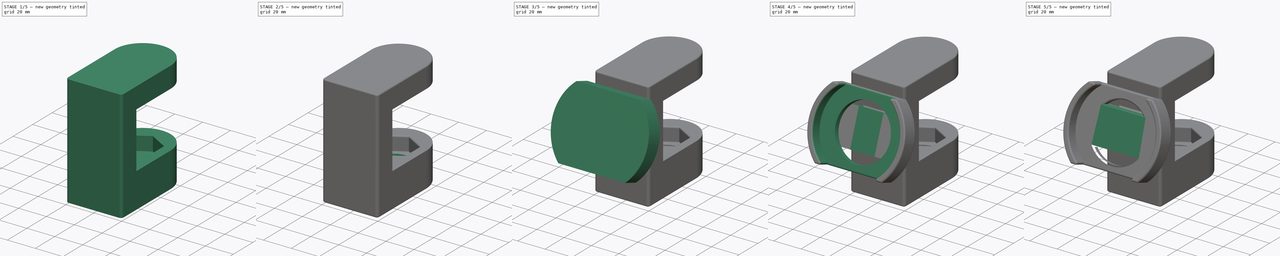
[diagram: build sequence overview — one tinted view per stage of 5, left to right]
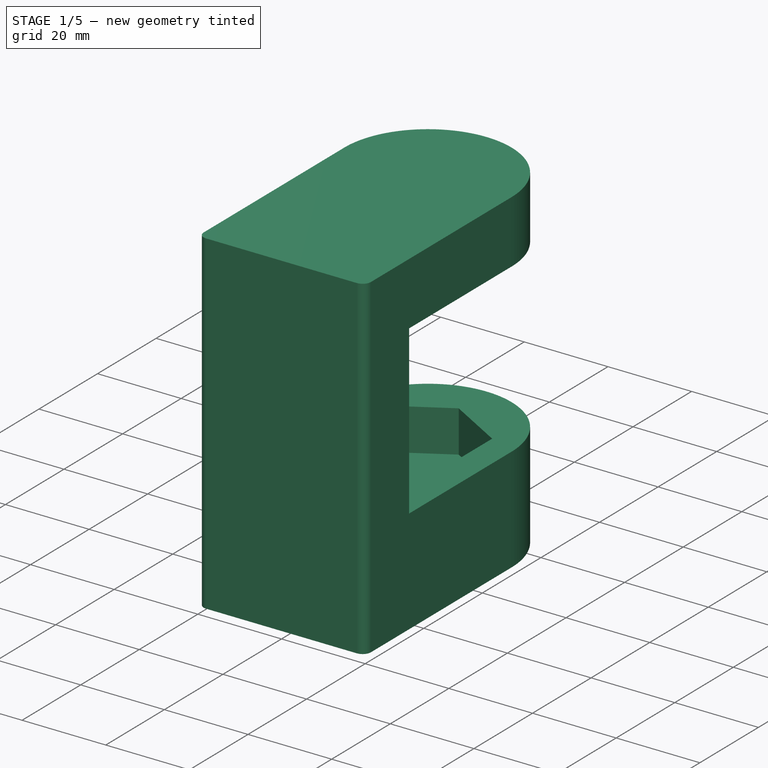
[diagram: stage 1 of 5 — iso view after this stage's code; geometry added in this stage tinted green]
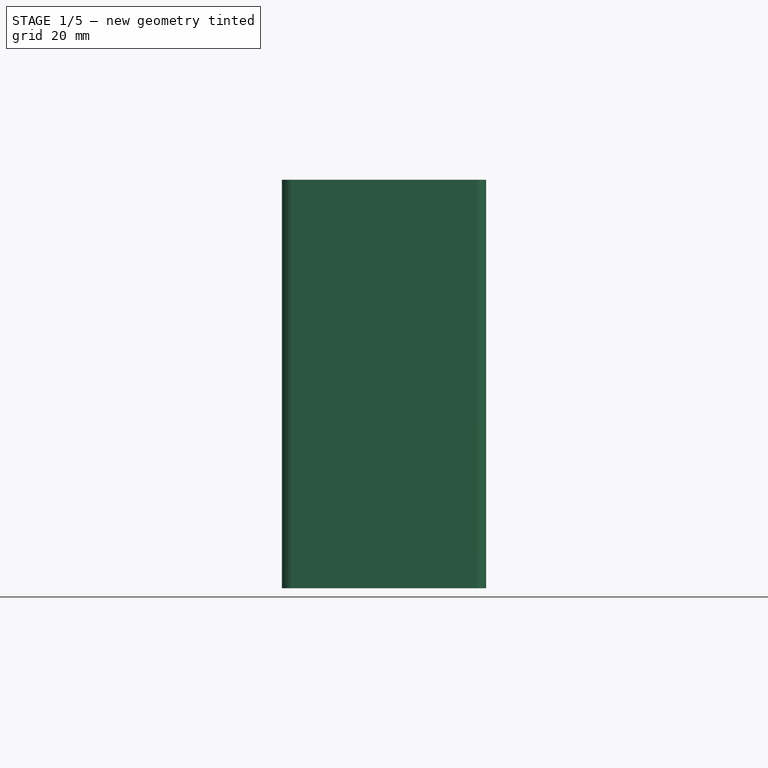
[diagram: stage 1 of 5 — front view after this stage's code; geometry added in this stage tinted green]
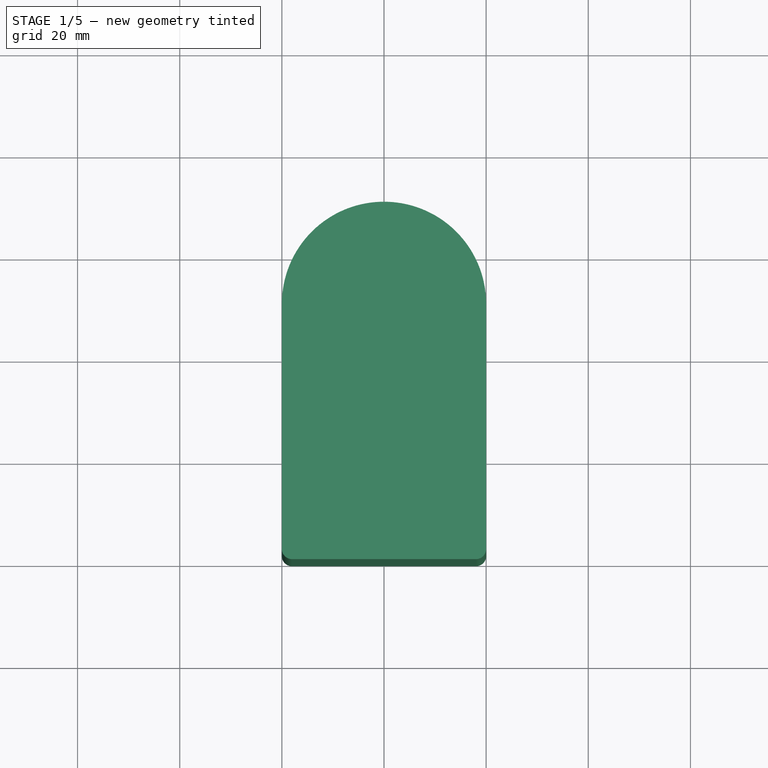
[diagram: stage 1 of 5 — top view after this stage's code; geometry added in this stage tinted green]
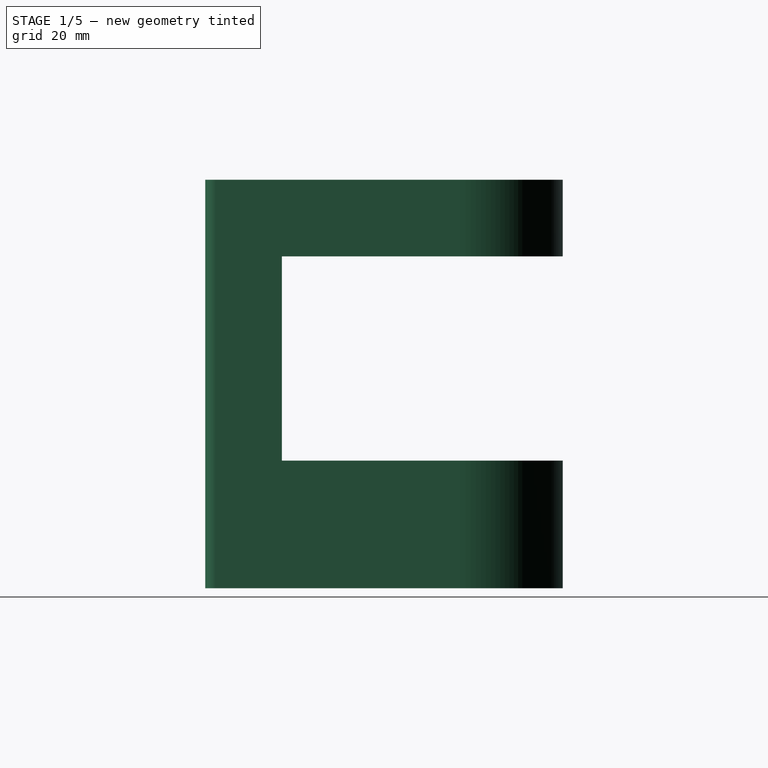
[diagram: stage 1 of 5 — right view after this stage's code; geometry added in this stage tinted green]
FCSTD DOCUMENT  (FreeCAD 1.0R39319 (Git))
Label: desk-clamp-magsafe
License: All rights reserved
LicenseURL: https://en.wikipedia.org/wiki/All_rights_reserved
objects: Sketcher::SketchObject×12, PartDesign::Plane×11, PartDesign::Fillet×10, PartDesign::Pad×7, PartDesign::Pocket×5, PartDesign::Body×1
note: 102 computed .brp shape members not serialized (recipe doc carries the construction recipe); baked Part::Feature solids carry a one-line shape summary decoded from their .brp

FEATURE [Sketcher::SketchObject] Sketch
  ArcFitTolerance = 1e-06
  AttachmentSupport = -> [XY_Plane]
  FullyConstrained = false
  MakeInternals = false
  MapMode = 5
  sketch-geometry (8):
    g0: LineSegment StartX=-18 StartY=0 StartZ=0 EndX=18 EndY=0 EndZ=0
    g1: LineSegment StartX=20 StartY=2 StartZ=0 EndX=20 EndY=50 EndZ=0
    g2: LineSegment StartX=-20 StartY=50 StartZ=0 EndX=-20 EndY=2 EndZ=0
    g3: ArcOfCircle CenterX=-3e-16 CenterY=50 CenterZ=0 NormalX=0 NormalY=0 NormalZ=1 AngleXU=0 Radius=20 StartAngle=0 EndAngle=3.14159
    g4: ArcOfCircle CenterX=-18 CenterY=2 CenterZ=0 NormalX=0 NormalY=0 NormalZ=1 AngleXU=0 Radius=2 StartAngle=3.14159 EndAngle=4.71239
    g5: GeomPoint [constr] X=-20 Y=0 Z=0
    g6: ArcOfCircle CenterX=18 CenterY=2 CenterZ=0 NormalX=0 NormalY=0 NormalZ=1 AngleXU=0 Radius=2 StartAngle=4.71239 EndAngle=6.28319
    g7: GeomPoint [constr] X=20 Y=0 Z=0
  constraints (19):
    c: Horizontal(g0)
    c: Vertical(g1)
    c: Vertical(g2)
    c: PointOnObject(g5,g-1)
    c: DistanceX(g5,g-1) = 20
    c: DistanceX(g-1,g7) = 20
    c: DistanceY(g-1,g3) = 50
    c: Coincident(g3,g2)
    c: Tangent(g3,g1) = -1.5708
    c: PointOnObject(g5,g0)
    c: PointOnObject(g5,g2)
    c: Tangent(g0,g4) = -1.5708
    c: Tangent(g2,g4) = -1.5708
    c: PointOnObject(g7,g0)
    c: PointOnObject(g7,g1)
    c: Tangent(g0,g6) = -1.5708
    c: Tangent(g1,g6) = -1.5708
    c: Distance(g6,g-1) = 2
    c: DistanceY(g-1,g4) = 2
FEATURE [PartDesign::Pad] Pad
  Direction = (0,0,1)
  Length = 15
  Length2 = 10
  Profile = -> Sketch
  ReferenceAxis = -> Sketch [N_Axis]
  Refine = true
  Reversed = true
  Suppressed = false
  Type = 0
FEATURE [PartDesign::Plane] DatumPlane
  AttachmentSupport = -> [Pad]
  Length = 60
  MapMode = 5
  Placement = pos=(0,0,-15) rot=(1,0,0;3.14159rad)
  ResizeMode = 0
  Width = 60
FEATURE [Sketcher::SketchObject] Sketch001
  ArcFitTolerance = 1e-06
  AttachmentSupport = -> [DatumPlane]
  FullyConstrained = true
  MakeInternals = false
  MapMode = 5
  Placement = pos=(0,0,-15) rot=(1,0,0;3.14159rad)
  sketch-geometry (8):
    g0: LineSegment StartX=-20 StartY=-2 StartZ=0 EndX=-20 EndY=-15 EndZ=0
    g1: LineSegment StartX=-20 StartY=-15 StartZ=0 EndX=20 EndY=-15 EndZ=0
    g2: LineSegment StartX=20 StartY=-15 StartZ=0 EndX=20 EndY=-2 EndZ=0
    g3: LineSegment StartX=18 StartY=0 StartZ=0 EndX=-18 EndY=0 EndZ=0
    g4: ArcOfCircle CenterX=-18 CenterY=-2 CenterZ=0 NormalX=0 NormalY=0 NormalZ=1 AngleXU=0 Radius=2 StartAngle=1.5708 EndAngle=3.14159
    g5: GeomPoint [constr] X=-20 Y=0 Z=0
    g6: ArcOfCircle CenterX=18 CenterY=-2 CenterZ=0 NormalX=0 NormalY=0 NormalZ=1 AngleXU=0 Radius=2 StartAngle=0 EndAngle=1.5708
    g7: GeomPoint [constr] X=20 Y=0 Z=0
  constraints (20):
    c: Coincident(g0,g1)
    c: Coincident(g1,g2)
    c: Vertical(g0)
    c: Vertical(g2)
    c: Horizontal(g1)
    c: Horizontal(g3)
    c: Distance(g5,g7) = 40
    c: Distance(g1,g5) = 15
    c: PointOnObject(g5,g-1)
    c: DistanceX(g5,g-1) = 20
    c: PointOnObject(g5,g0)
    c: PointOnObject(g5,g3)
    c: Tangent(g0,g4) = -1.5708
    c: Tangent(g3,g4) = -1.5708
    c: PointOnObject(g7,g2)
    c: PointOnObject(g7,g3)
    c: Tangent(g2,g6) = -1.5708
    c: Tangent(g3,g6) = -1.5708
    c: DistanceY(g4,g-1) = 2
    c: DistanceY(g6,g-1) = 2
FEATURE [PartDesign::Pad] Pad001
  BaseFeature = -> Pad
  Direction = (0,0,-1)
  Length = 40
  Length2 = 10
  Profile = -> Sketch001
  ReferenceAxis = -> Sketch001 [N_Axis]
  Refine = true
  Suppressed = false
  Type = 0
FEATURE [PartDesign::Plane] DatumPlane001
  AttachmentSupport = -> [Pad001]
  Length = 60
  MapMode = 5
  Placement = pos=(0,0,-55) rot=(1,0,0;3.14159rad)
  ResizeMode = 0
  Width = 60
FEATURE [Sketcher::SketchObject] Sketch002
  ArcFitTolerance = 1e-06
  AttachmentSupport = -> [DatumPlane001]
  FullyConstrained = false
  MakeInternals = false
  MapMode = 5
  Placement = pos=(0,0,-55) rot=(1,0,0;3.14159rad)
  sketch-geometry (8):
    g0: LineSegment StartX=-20 StartY=-2 StartZ=0 EndX=-20 EndY=-50 EndZ=0
    g1: LineSegment StartX=20 StartY=-50 StartZ=0 EndX=20 EndY=-2 EndZ=0
    g2: LineSegment StartX=18 StartY=0 StartZ=0 EndX=-18 EndY=0 EndZ=0
    g3: ArcOfCircle CenterX=1.3e-15 CenterY=-50 CenterZ=0 NormalX=0 NormalY=0 NormalZ=1 AngleXU=0 Radius=20 StartAngle=3.14159 EndAngle=6.28319
    g4: ArcOfCircle CenterX=-18 CenterY=-2 CenterZ=0 NormalX=0 NormalY=0 NormalZ=1 AngleXU=0 Radius=2 StartAngle=1.5708 EndAngle=3.14159
    g5: GeomPoint [constr] X=-20 Y=0 Z=0
    g6: ArcOfCircle CenterX=18 CenterY=-2 CenterZ=0 NormalX=0 NormalY=0 NormalZ=1 AngleXU=0 Radius=2 StartAngle=0 EndAngle=1.5708
    g7: GeomPoint [constr] X=20 Y=0 Z=0
  constraints (19):
    c: Vertical(g0)
    c: Vertical(g1)
    c: Horizontal(g2)
    c: Distance(g5,g7) = 40
    c: PointOnObject(g5,g-1)
    c: Coincident(g1,g3)
    c: Coincident(g0,g3)
    c: DistanceY(g3,g-1) = 50
    c: PointOnObject(g5,g0)
    c: PointOnObject(g5,g2)
    c: Tangent(g0,g4) = -1.5708
    c: Tangent(g2,g4) = -1.5708
    c: PointOnObject(g7,g1)
    c: PointOnObject(g7,g2)
    c: Tangent(g1,g6) = -1.5708
    c: Tangent(g2,g6) = -1.5708
    c: Distance(g6,g-1) = 2
    c: DistanceY(g4,g-1) = 2
    c: DistanceX(g5,g-1) = 20
FEATURE [PartDesign::Pad] Pad002
  BaseFeature = -> Pad001
  Direction = (0,0,-1)
  Length = 25
  Length2 = 10
  Profile = -> Sketch002
  ReferenceAxis = -> Sketch002 [N_Axis]
  Refine = true
  Suppressed = false
  Type = 0
FEATURE [PartDesign::Plane] DatumPlane002
  AttachmentSupport = -> [Pad002]
  Length = 60
  MapMode = 5
  Placement = pos=(0,0,-55) rot=(0,0,1;0rad)
  ResizeMode = 0
  Width = 60
FEATURE [Sketcher::SketchObject] Sketch003
  ArcFitTolerance = 1e-06
  AttachmentSupport = -> [DatumPlane002]
  FullyConstrained = false
  MakeInternals = false
  MapMode = 5
  Placement = pos=(0,0,-55) rot=(0,0,1;0rad)
  sketch-geometry (11):
    g0: LineSegment [constr] StartX=-20.431 StartY=0 StartZ=0 EndX=19.569 EndY=0 EndZ=0
    g1: LineSegment [constr] StartX=19.569 StartY=0 StartZ=0 EndX=19.569 EndY=70 EndZ=0
    g2: LineSegment [constr] StartX=19.569 StartY=70 StartZ=0 EndX=-20.431 EndY=70 EndZ=0
    g3: LineSegment [constr] StartX=-20.431 StartY=70 StartZ=0 EndX=-20.431 EndY=0 EndZ=0
    g4: LineSegment StartX=13.4234 StartY=52.75 StartZ=0 EndX=0 EndY=60.5 EndZ=0
    g5: LineSegment StartX=0 StartY=60.5 StartZ=0 EndX=-13.4234 EndY=52.75 EndZ=0
    g6: LineSegment StartX=-13.4234 StartY=52.75 StartZ=0 EndX=-13.4234 EndY=37.25 EndZ=0
    g7: LineSegment StartX=-13.4234 StartY=37.25 StartZ=0 EndX=-1.8e-15 EndY=29.5 EndZ=0
    g8: LineSegment StartX=-1.8e-15 StartY=29.5 StartZ=0 EndX=13.4234 EndY=37.25 EndZ=0
    g9: LineSegment StartX=13.4234 StartY=37.25 StartZ=0 EndX=13.4234 EndY=52.75 EndZ=0
    g10: Circle [constr] CenterX=0 CenterY=45 CenterZ=0 NormalX=0 NormalY=0 NormalZ=1 AngleXU=0 Radius=15.5
  constraints (28):
    c: Coincident(g0,g1)
    c: Coincident(g1,g2)
    c: Coincident(g2,g3)
    c: Coincident(g3,g0)
    c: Horizontal(g0)
    c: Horizontal(g2)
    c: Vertical(g1)
    c: Vertical(g3)
    c: Distance(g1,g3) = 40
    c: Distance(g0,g2) = 70
    c: PointOnObject(g0,g-1)
    c: Coincident(g4,g5)
    c: Coincident(g5,g6)
    c: Coincident(g6,g7)
    c: Coincident(g7,g8)
    c: Coincident(g8,g9)
    c: Coincident(g9,g4)
    c: Equal(g4, g5-g9) x5
    c: PointOnObject(g4,g10)
    c: PointOnObject(g5,g10)
    c: PointOnObject(g6,g10)
    c: PointOnObject(g7,g10)
    c: PointOnObject(g8,g10)
    c: PointOnObject(g9,g10)
    c: Radius(g10) = 15.5
    c: PointOnObject(g10,g-2)
    c: DistanceX(g10,g4) = 0
    c: DistanceY(g-1,g10) = 45
FEATURE [PartDesign::Pocket] Pocket
  BaseFeature = -> Pad002
  Direction = (0,0,-1)
  Length = 10
  Length2 = 5
  Profile = -> Sketch003
  ReferenceAxis = -> Sketch003 [N_Axis]
  Refine = true
  Suppressed = false
  Type = 0
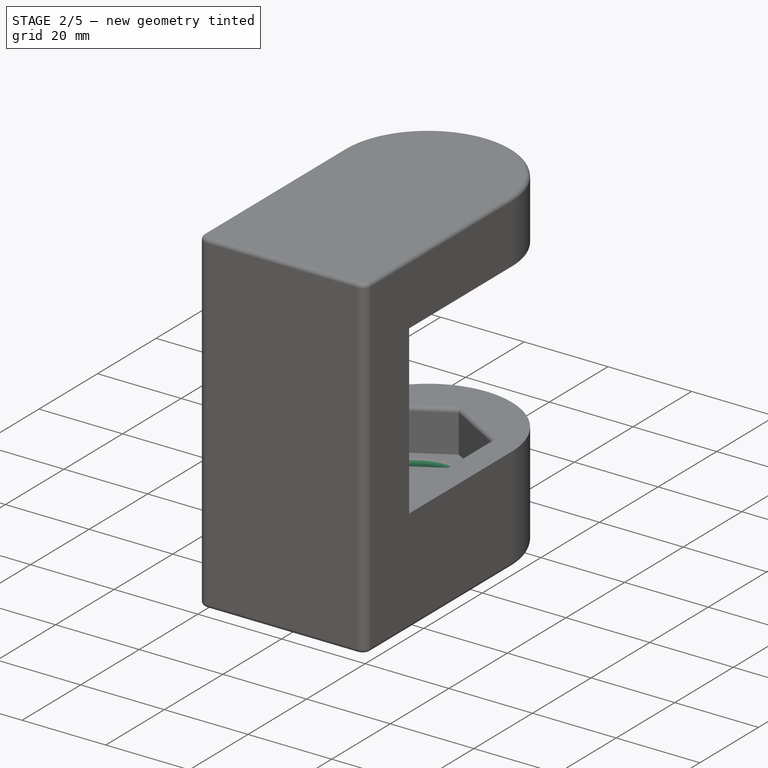
[diagram: stage 2 of 5 — iso view after this stage's code; geometry added in this stage tinted green]
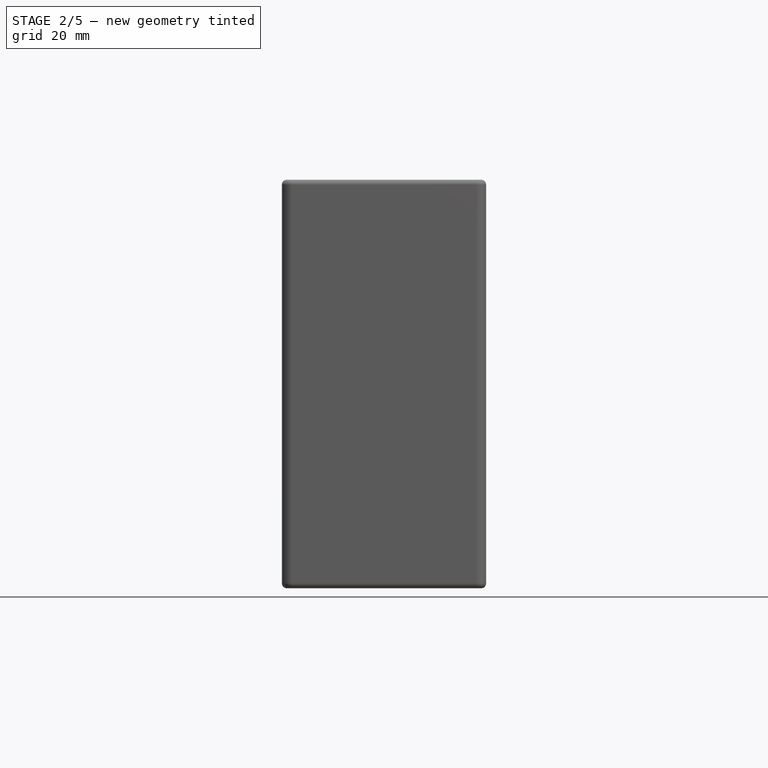
[diagram: stage 2 of 5 — front view after this stage's code; geometry added in this stage tinted green]
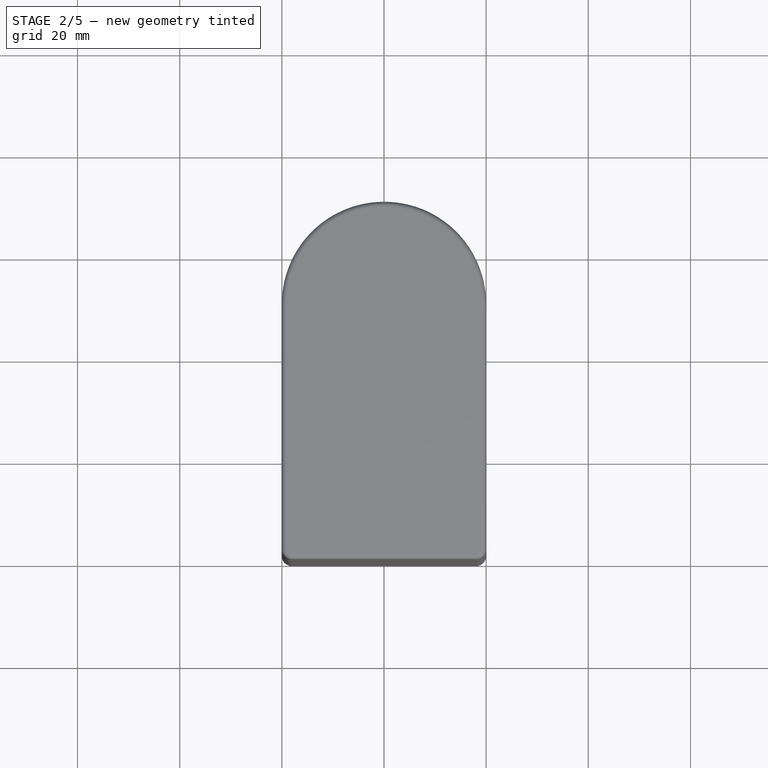
[diagram: stage 2 of 5 — top view after this stage's code; geometry added in this stage tinted green]
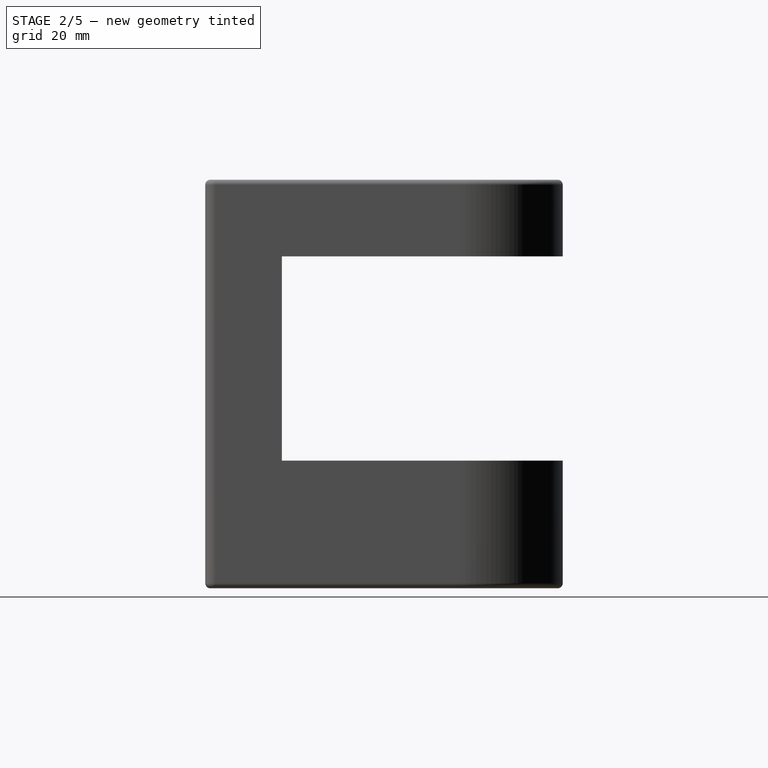
[diagram: stage 2 of 5 — right view after this stage's code; geometry added in this stage tinted green]
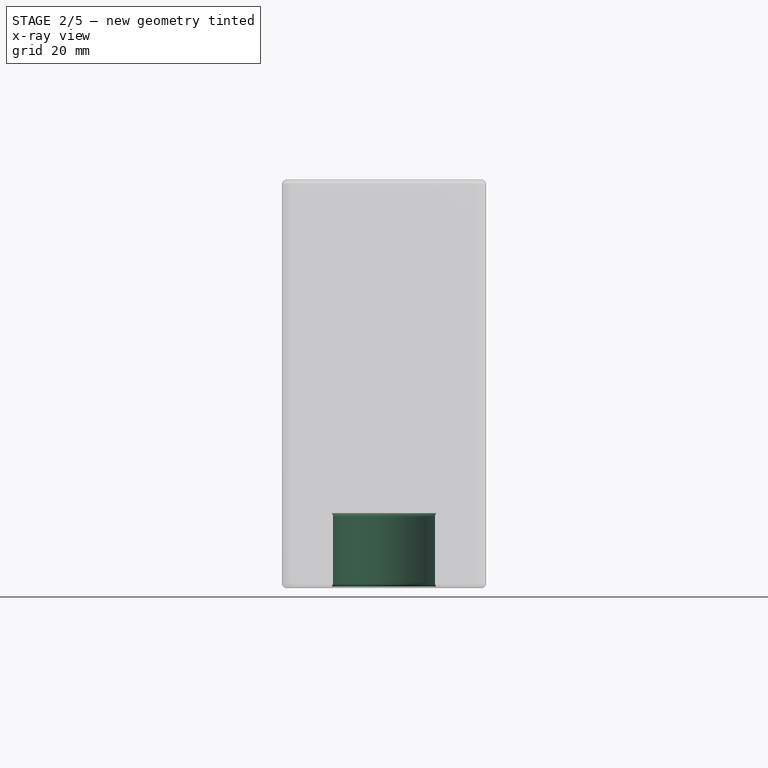
[diagram: stage 2 of 5 — x-ray composite at the front view; earlier geometry ghosted, this stage's added geometry solid]
FEATURE [PartDesign::Fillet] Fillet
  Base = -> Pocket [Edge35,Edge34,Edge33,Edge32,Edge31,Edge36]
  BaseFeature = -> Pocket
  Radius = 1
  Refine = true
  SupportTransform = false
  Suppressed = false
  UseAllEdges = false
FEATURE [Sketcher::SketchObject] Sketch004
  ArcFitTolerance = 1e-06
  AttachmentSupport = -> [DatumPlane002]
  FullyConstrained = false
  MakeInternals = false
  MapMode = 5
  Placement = pos=(0,0,-55) rot=(0,0,1;0rad)
  sketch-geometry (1):
    g0: Circle CenterX=0 CenterY=45.4965 CenterZ=0 NormalX=0 NormalY=0 NormalZ=1 AngleXU=0 Radius=10
  constraints (2):
    c: Diameter(g0) = 20
    c: PointOnObject(g0,g-2)
FEATURE [PartDesign::Pocket] Pocket001
  BaseFeature = -> Fillet
  Direction = (0,0,-1)
  Length = 40
  Length2 = 5
  Profile = -> Sketch004
  ReferenceAxis = -> Sketch004 [N_Axis]
  Refine = true
  Suppressed = false
  Type = 0
FEATURE [PartDesign::Fillet] Fillet001
  Base = -> Pocket001 [Edge62,Edge56]
  BaseFeature = -> Pocket001
  Radius = 1
  Refine = true
  SupportTransform = false
  Suppressed = false
  UseAllEdges = false
FEATURE [PartDesign::Fillet] Fillet002
  Base = -> Fillet001 [Face1]
  BaseFeature = -> Fillet001
  Radius = 1
  Refine = true
  SupportTransform = false
  Suppressed = false
  UseAllEdges = false
FEATURE [PartDesign::Fillet] Fillet003
  Base = -> Fillet002 [Face18]
  BaseFeature = -> Fillet002
  Radius = 1
  Refine = true
  SupportTransform = false
  Suppressed = false
  UseAllEdges = false
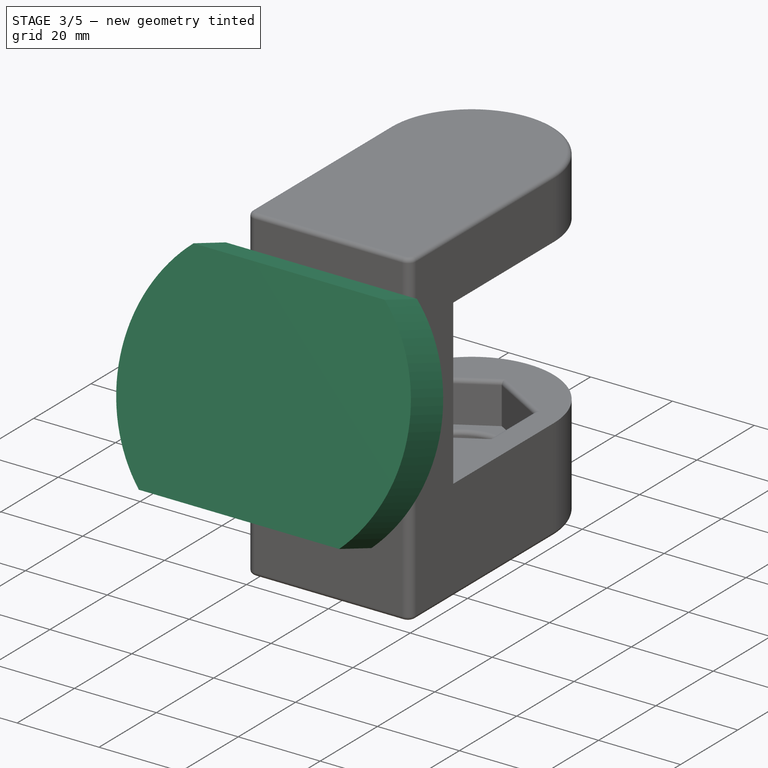
[diagram: stage 3 of 5 — iso view after this stage's code; geometry added in this stage tinted green]
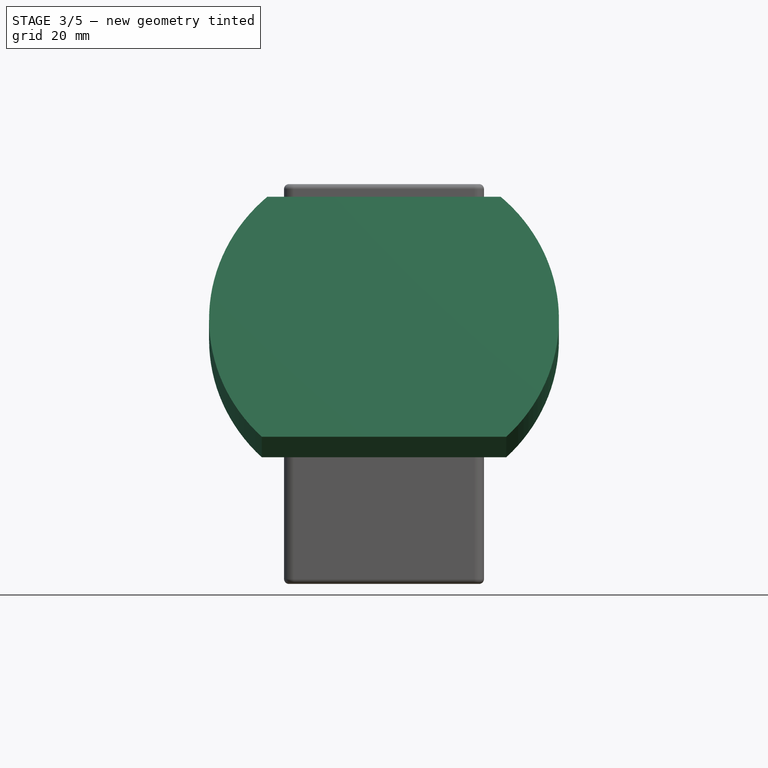
[diagram: stage 3 of 5 — front view after this stage's code; geometry added in this stage tinted green]
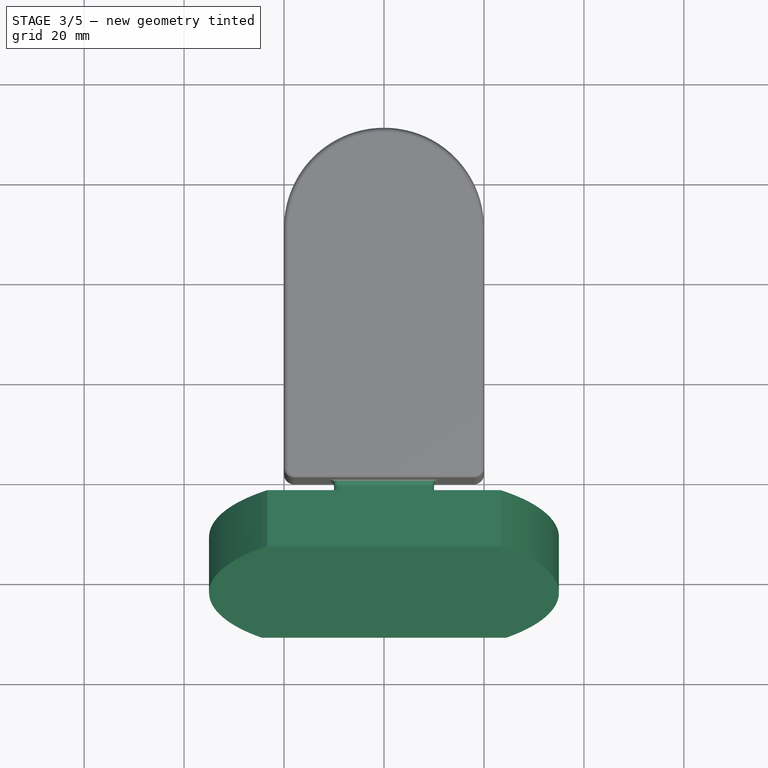
[diagram: stage 3 of 5 — top view after this stage's code; geometry added in this stage tinted green]
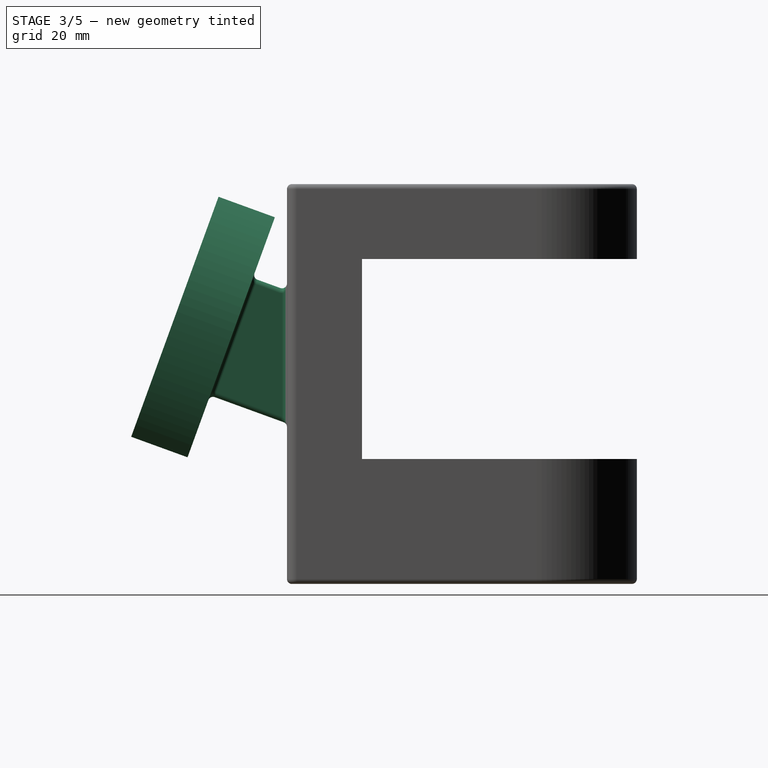
[diagram: stage 3 of 5 — right view after this stage's code; geometry added in this stage tinted green]
FEATURE [PartDesign::Plane] DatumPlane003
  AttachmentOffset = pos=(0,0,0) rot=(-1,0,0;0.349066rad)
  AttachmentSupport = -> [Fillet003]
  Length = 61.3213
  MapMode = 5
  Placement = pos=(0,7e-16,0) rot=(1,0,0;1.22173rad)
  ResizeMode = 0
  Width = 75.4069
FEATURE [Sketcher::SketchObject] Sketch005
  ArcFitTolerance = 1e-06
  AttachmentSupport = -> [DatumPlane003]
  FullyConstrained = true
  MakeInternals = false
  MapMode = 5
  Placement = pos=(0,7e-16,0) rot=(1,0,0;1.22173rad)
  sketch-geometry (4):
    g0: LineSegment StartX=-10 StartY=-20 StartZ=0 EndX=-10 EndY=-45 EndZ=0
    g1: LineSegment StartX=-10 StartY=-45 StartZ=0 EndX=10 EndY=-45 EndZ=0
    g2: LineSegment StartX=10 StartY=-45 StartZ=0 EndX=10 EndY=-20 EndZ=0
    g3: LineSegment StartX=10 StartY=-20 StartZ=0 EndX=-10 EndY=-20 EndZ=0
  constraints (12):
    c: Coincident(g0,g1)
    c: Coincident(g1,g2)
    c: Coincident(g2,g3)
    c: Coincident(g3,g0)
    c: Vertical(g0)
    c: Vertical(g2)
    c: Horizontal(g1)
    c: Horizontal(g3)
    c: Distance(g0,g2) = 20
    c: Distance(g1,g3) = 25
    c: DistanceX(g0,g-1) = 10
    c: DistanceY(g0,g-1) = 20
FEATURE [PartDesign::Pad] Pad003
  BaseFeature = -> Fillet003
  Direction = (0,-0.939693,0.34202)
  Length = 10
  Length2 = 10
  Profile = -> Sketch005
  ReferenceAxis = -> Sketch005 [N_Axis]
  Refine = true
  Reversed = true
  Suppressed = false
  Type = 2
FEATURE [PartDesign::Fillet] Fillet004
  Base = -> Pad003 [Edge41,Edge40,Edge39,Edge38]
  BaseFeature = -> Pad003
  Radius = 1
  Refine = true
  SupportTransform = false
  Suppressed = false
  UseAllEdges = false
FEATURE [PartDesign::Plane] DatumPlane004
  AttachmentSupport = -> [Fillet004]
  Length = 61.3213
  MapMode = 5
  Placement = pos=(0,1.7e-15,-6e-16) rot=(1,0,0;1.22173rad)
  ResizeMode = 0
  Width = 75.4069
FEATURE [Sketcher::SketchObject] Sketch006
  ArcFitTolerance = 1e-06
  AttachmentSupport = -> [DatumPlane004]
  FullyConstrained = false
  MakeInternals = false
  MapMode = 5
  Placement = pos=(0,1.7e-15,-6e-16) rot=(1,0,0;1.22173rad)
  sketch-geometry (4):
    g0: ArcOfCircle CenterX=0 CenterY=-33.14 CenterZ=0 NormalX=0 NormalY=0 NormalZ=1 AngleXU=0 Radius=35 StartAngle=5.48636 EndAngle=7.1235
    g1: LineSegment StartX=-24.4642 StartY=-58.17 StartZ=0 EndX=24.4642 EndY=-58.17 EndZ=0
    g2: LineSegment StartX=-23.3531 StartY=-7.07021 StartZ=0 EndX=23.3531 EndY=-7.07021 EndZ=0
    g3: ArcOfCircle CenterX=0 CenterY=-33.14 CenterZ=0 NormalX=0 NormalY=0 NormalZ=1 AngleXU=0 Radius=35 StartAngle=2.30128 EndAngle=3.93842
  constraints (12):
    c: Diameter(g0) = 70
    c: PointOnObject(g0,g-2)
    c: Horizontal(g1)
    c: Coincident(g0,g1)
    c: Coincident(g1,g3)
    c: DistanceY(g0,g-1) = 33.14
    c: DistanceY(g0,g0) = 25.03
    c: Horizontal(g2)
    c: Equal(g0,g3)
    c: Coincident(g0,g3)
    c: Coincident(g2,g0)
    c: Coincident(g2,g3)
FEATURE [PartDesign::Pad] Pad004
  BaseFeature = -> Fillet004
  Direction = (0,-0.939693,0.34202)
  Length = 12
  Length2 = 10
  Profile = -> Sketch006
  ReferenceAxis = -> Sketch006 [N_Axis]
  Refine = true
  Suppressed = false
  Type = 0
FEATURE [PartDesign::Plane] DatumPlane005
  AttachmentSupport = -> [Pad004]
  Length = 61.3213
  MapMode = 5
  Placement = pos=(0,-11.2763,4.10424) rot=(1,0,0;1.22173rad)
  ResizeMode = 0
  Width = 75.4069
FEATURE [PartDesign::Fillet] Fillet005
  Base = -> Pad004 [Edge39,Edge33,Edge35,Edge37,Edge36,Edge34,Edge40,Edge38]
  BaseFeature = -> Pad004
  Radius = 1
  Refine = true
  SupportTransform = false
  Suppressed = false
  UseAllEdges = false
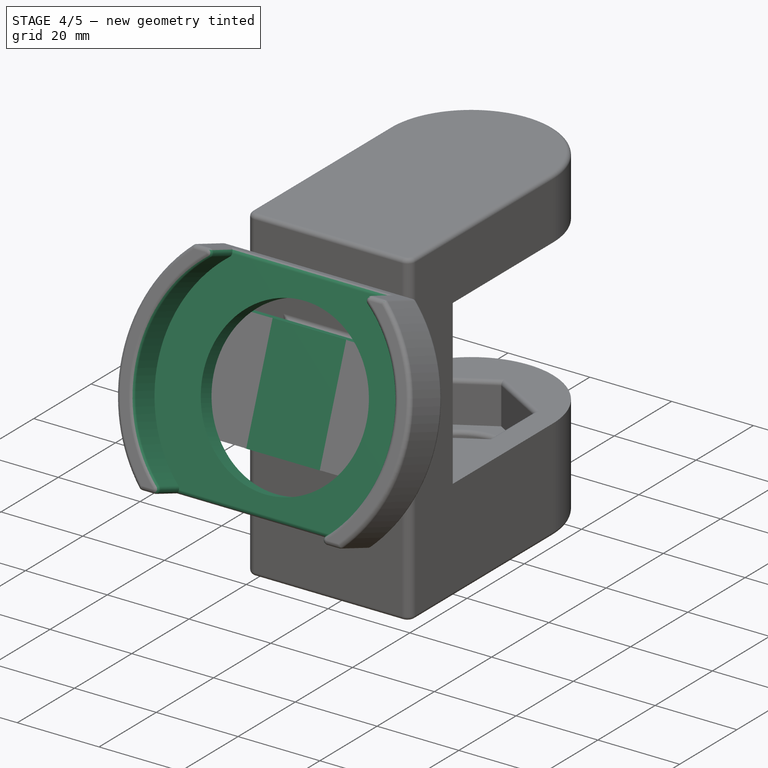
[diagram: stage 4 of 5 — iso view after this stage's code; geometry added in this stage tinted green]
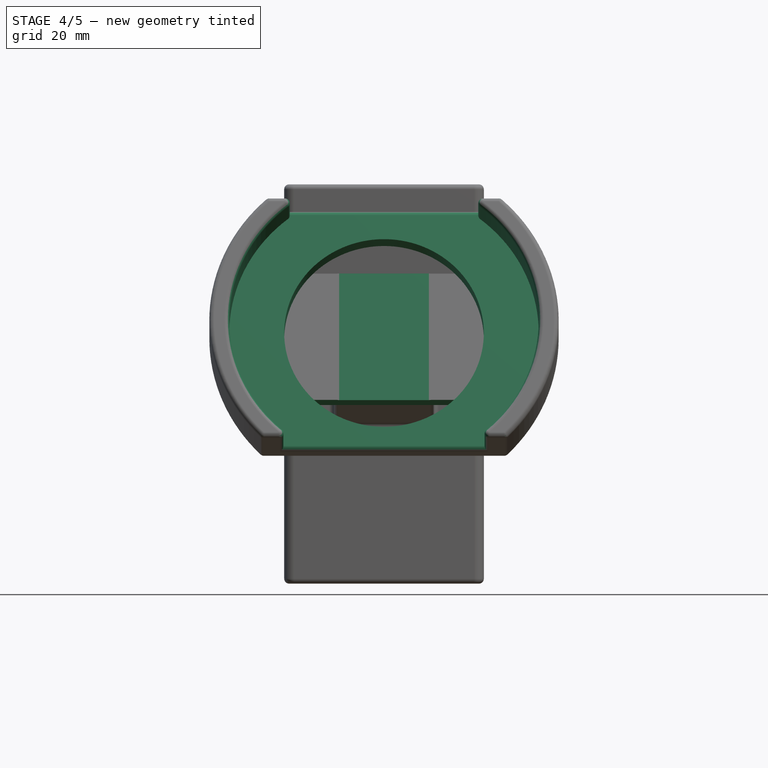
[diagram: stage 4 of 5 — front view after this stage's code; geometry added in this stage tinted green]
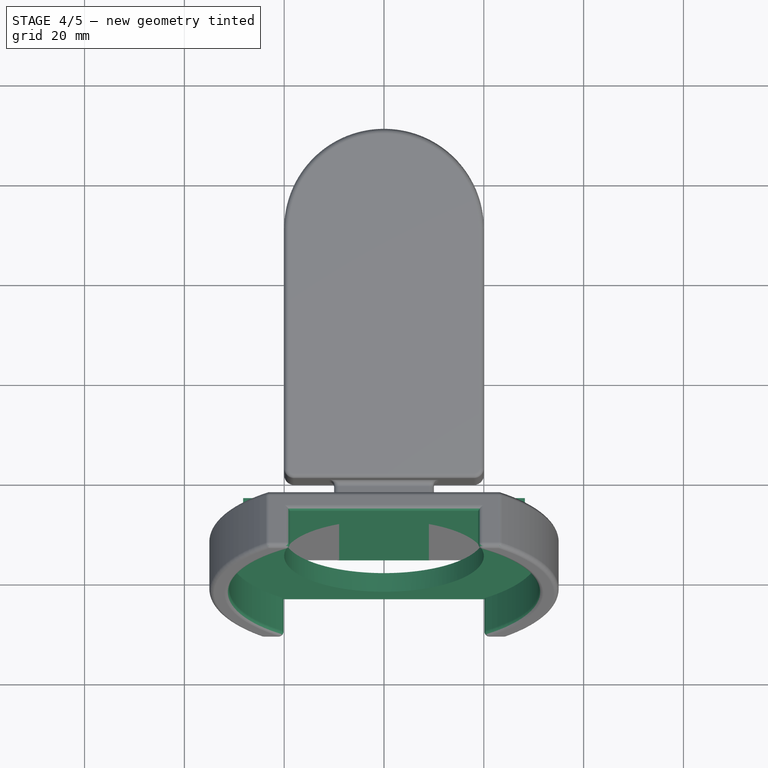
[diagram: stage 4 of 5 — top view after this stage's code; geometry added in this stage tinted green]
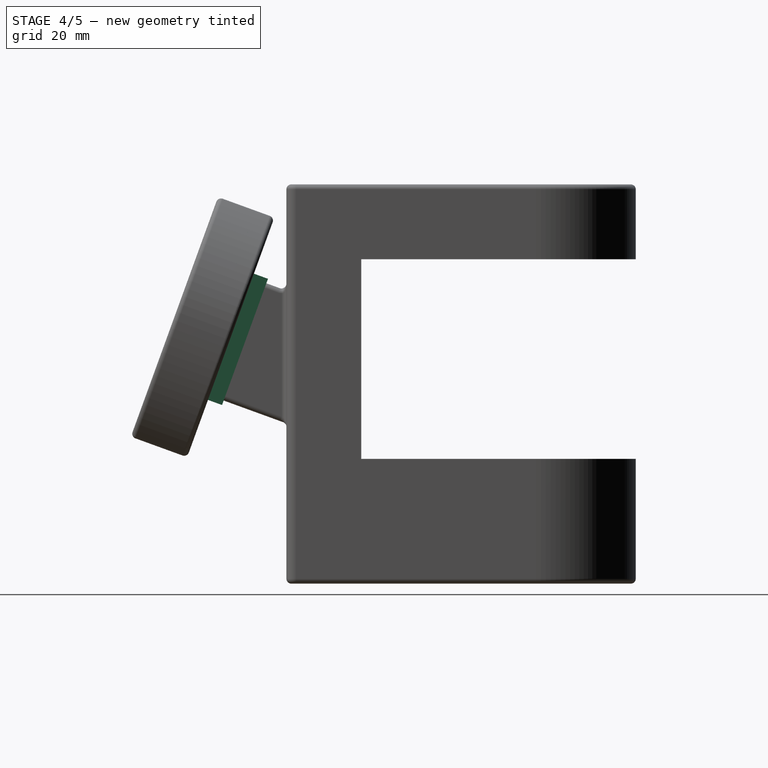
[diagram: stage 4 of 5 — right view after this stage's code; geometry added in this stage tinted green]
FEATURE [PartDesign::Fillet] Fillet006
  Base = -> Fillet005 [Edge70,Edge69,Edge68,Edge67]
  BaseFeature = -> Fillet005
  Radius = 1
  Refine = true
  SupportTransform = false
  Suppressed = false
  UseAllEdges = false
FEATURE [PartDesign::Plane] DatumPlane006
  AttachmentSupport = -> [Fillet006]
  Length = 61.3213
  MapMode = 5
  Placement = pos=(0,-11.2763,4.10424) rot=(1,0,0;1.22173rad)
  ResizeMode = 0
  Width = 75.4069
FEATURE [Sketcher::SketchObject] Sketch007
  ArcFitTolerance = 1e-06
  AttachmentSupport = -> [DatumPlane006]
  FullyConstrained = true
  MakeInternals = false
  MapMode = 5
  Placement = pos=(0,-11.2763,4.10424) rot=(1,0,0;1.22173rad)
  sketch-geometry (1):
    g0: Circle CenterX=0 CenterY=-33.14 CenterZ=0 NormalX=0 NormalY=0 NormalZ=1 AngleXU=0 Radius=31
  constraints (3):
    c: Diameter(g0) = 62
    c: PointOnObject(g0,g-2)
    c: DistanceY(g0,g-1) = 33.14
FEATURE [PartDesign::Pocket] Pocket002
  BaseFeature = -> Fillet006
  Direction = (0,0.939693,-0.34202)
  Length = 8
  Length2 = 5
  Profile = -> Sketch007
  ReferenceAxis = -> Sketch007 [N_Axis]
  Refine = true
  Suppressed = false
  Type = 0
FEATURE [PartDesign::Fillet] Fillet007
  Base = -> Pocket002 [Face27,Face26,Edge44,Edge42,Edge50,Edge48,Edge49,Edge46,Edge39,Edge37,Edge40,Edge43]
  BaseFeature = -> Pocket002
  Radius = 1
  Refine = true
  SupportTransform = false
  Suppressed = false
  UseAllEdges = false
FEATURE [PartDesign::Plane] DatumPlane008
  Length = 61.3213
  MapMode = 5
  Placement = pos=(0,3.3e-15,-1.2e-15) rot=(0,0.819152,0.573576;3.14159rad)
  ResizeMode = 0
  Width = 75.4069
FEATURE [Sketcher::SketchObject] Sketch008
  ArcFitTolerance = 1e-06
  AttachmentSupport = -> [DatumPlane008]
  FullyConstrained = false
  MakeInternals = false
  MapMode = 5
  Placement = pos=(0,3.3e-15,-1.2e-15) rot=(0,0.819152,0.573576;3.14159rad)
  sketch-geometry (5):
    g0: LineSegment StartX=-28.2287 StartY=-19.0438 StartZ=0 EndX=-28.2287 EndY=-45.9562 EndZ=0
    g1: LineSegment StartX=-28.2287 StartY=-45.9562 StartZ=0 EndX=28.2287 EndY=-45.9562 EndZ=0
    g2: LineSegment StartX=28.2287 StartY=-45.9562 StartZ=0 EndX=28.2287 EndY=-19.0438 EndZ=0
    g3: LineSegment StartX=28.2287 StartY=-19.0438 StartZ=0 EndX=-28.2287 EndY=-19.0438 EndZ=0
    g4: GeomPoint [constr] X=0 Y=-32.5 Z=0
  constraints (11):
    c: Coincident(g0,g1)
    c: Coincident(g1,g2)
    c: Coincident(g2,g3)
    c: Coincident(g3,g0)
    c: Vertical(g0)
    c: Vertical(g2)
    c: Horizontal(g1)
    c: Horizontal(g3)
    c: Symmetric(g2,g0,g4)
    c: PointOnObject(g4,g-2)
    c: DistanceY(g4,g-1) = 32.5
FEATURE [PartDesign::Pad] Pad005
  BaseFeature = -> Fillet007
  Direction = (0,0.939693,-0.34202)
  Length = 3
  Length2 = 10
  Profile = -> Sketch008
  ReferenceAxis = -> Sketch008 [N_Axis]
  Refine = true
  Suppressed = false
  Type = 0
FEATURE [PartDesign::Plane] DatumPlane009
  Length = 61.3213
  MapMode = 5
  Placement = pos=(0,-3.75877,1.36808) rot=(1,0,0;1.22173rad)
  ResizeMode = 0
  Width = 75.4069
FEATURE [Sketcher::SketchObject] Sketch009
  ArcFitTolerance = 1e-06
  AttachmentSupport = -> [DatumPlane009]
  FullyConstrained = true
  MakeInternals = false
  MapMode = 5
  Placement = pos=(0,-3.75877,1.36808) rot=(1,0,0;1.22173rad)
  sketch-geometry (1):
    g0: Circle CenterX=0 CenterY=-33.14 CenterZ=0 NormalX=0 NormalY=0 NormalZ=1 AngleXU=0 Radius=20
  constraints (3):
    c: PointOnObject(g0,g-2)
    c: DistanceY(g0,g-1) = 33.14
    c: Diameter(g0) = 40
FEATURE [PartDesign::Pocket] Pocket003
  BaseFeature = -> Pad005
  Direction = (0,0.939693,-0.34202)
  Length = 4
  Length2 = 5
  Profile = -> Sketch009
  ReferenceAxis = -> Sketch009 [N_Axis]
  Refine = true
  Suppressed = false
  Type = 0
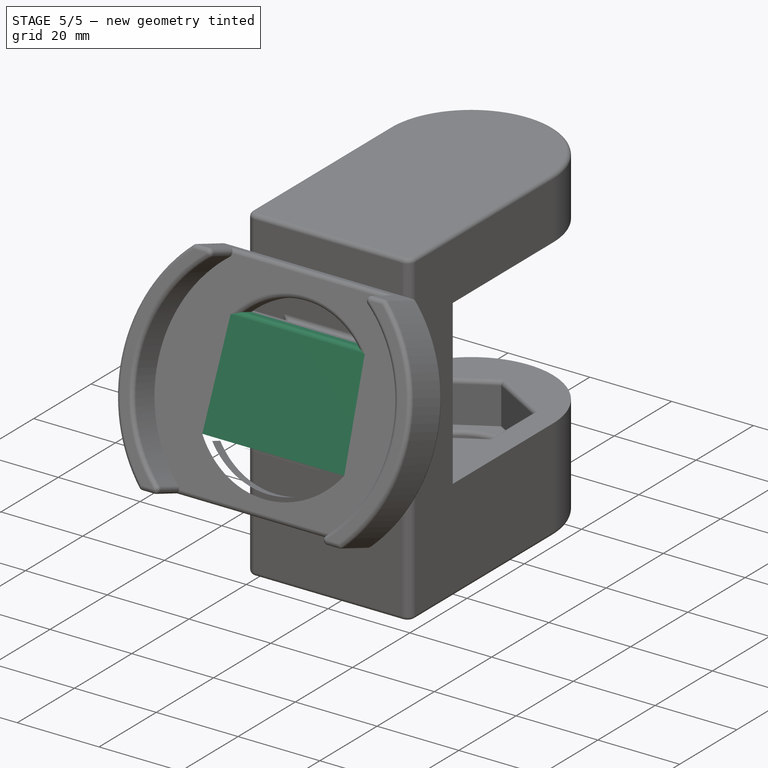
[diagram: stage 5 of 5 — iso view after this stage's code; geometry added in this stage tinted green]
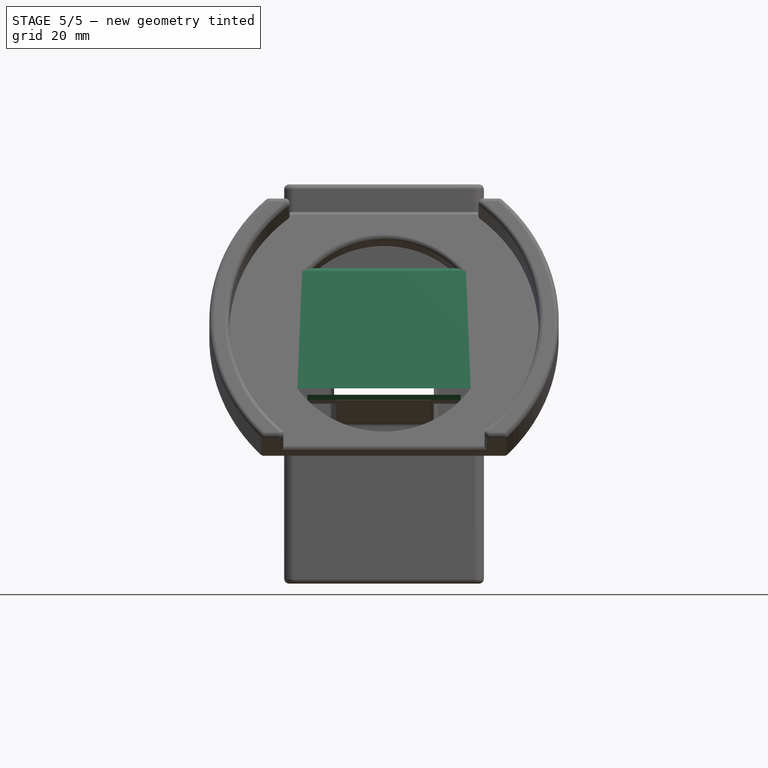
[diagram: stage 5 of 5 — front view after this stage's code; geometry added in this stage tinted green]
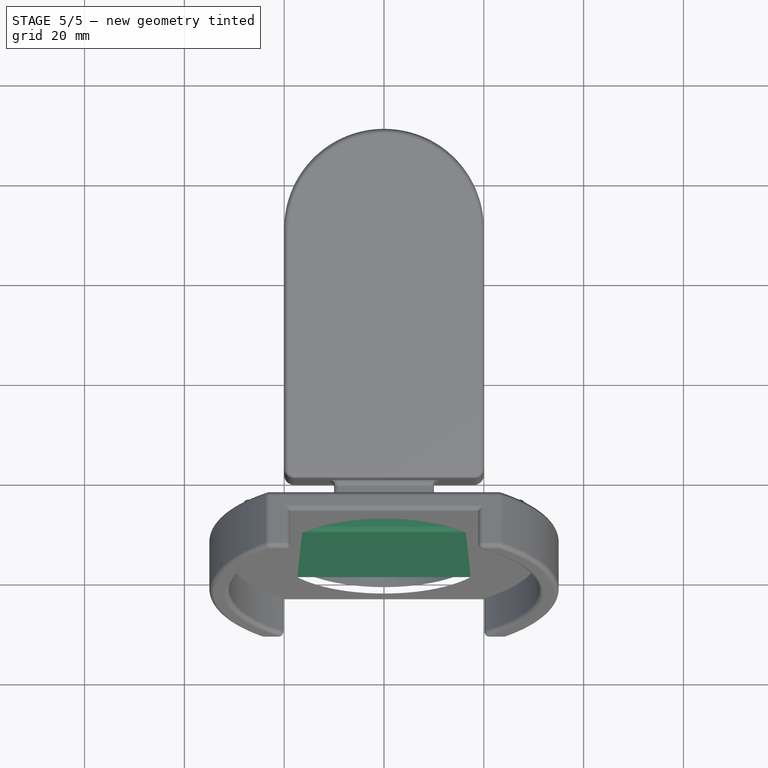
[diagram: stage 5 of 5 — top view after this stage's code; geometry added in this stage tinted green]
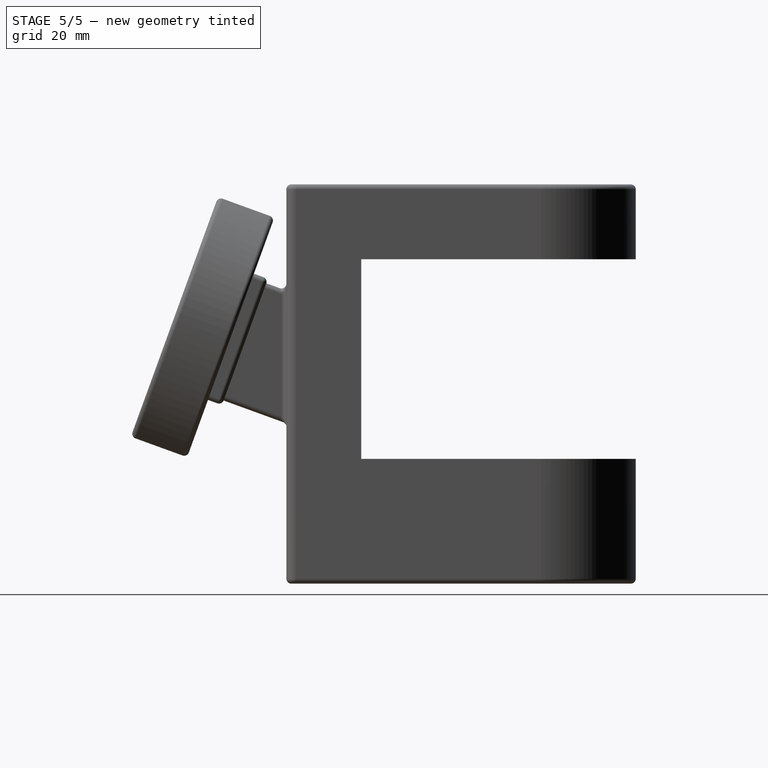
[diagram: stage 5 of 5 — right view after this stage's code; geometry added in this stage tinted green]
FEATURE [PartDesign::Plane] DatumPlane010
  AttachmentSupport = -> [Pad005]
  Length = 61.3213
  MapMode = 5
  Placement = pos=(0,-3.75877,1.36808) rot=(1,0,0;1.22173rad)
  ResizeMode = 0
  Width = 75.4069
FEATURE [Sketcher::SketchObject] Sketch010
  ArcFitTolerance = 1e-06
  AttachmentSupport = -> [DatumPlane010]
  FullyConstrained = true
  MakeInternals = false
  MapMode = 5
  Placement = pos=(0,-3.75877,1.36808) rot=(1,0,0;1.22173rad)
  sketch-geometry (1):
    g0: Circle CenterX=0 CenterY=-33.14 CenterZ=0 NormalX=0 NormalY=0 NormalZ=1 AngleXU=0 Radius=20
  constraints (3):
    c: Diameter(g0) = 40
    c: PointOnObject(g0,g-2)
    c: DistanceY(g0,g-1) = 33.14
FEATURE [PartDesign::Pocket] Pocket004
  BaseFeature = -> Pocket003
  Direction = (0,0.939693,-0.34202)
  Length = 4
  Length2 = 5
  Profile = -> Sketch010
  ReferenceAxis = -> Sketch010 [N_Axis]
  Refine = true
  Suppressed = false
  Type = 0
FEATURE [PartDesign::Fillet] Fillet011
  Base = -> Pocket004 [Edge60,Edge53,Edge50,Edge61,Edge59,Edge52,Edge51,Edge49]
  BaseFeature = -> Pocket004
  Radius = 1
  Refine = true
  SupportTransform = false
  Suppressed = false
  UseAllEdges = false
FEATURE [PartDesign::Plane] DatumPlane011
  AttachmentSupport = -> [Fillet011]
  Length = 61.3213
  MapMode = 5
  Placement = pos=(0,1.34e-14,-4.9e-15) rot=(1,0,0;1.22173rad)
  ResizeMode = 0
  Width = 75.4069
FEATURE [Sketcher::SketchObject] Sketch011
  ArcFitTolerance = 1e-06
  AttachmentSupport = -> [DatumPlane011]
  FullyConstrained = false
  MakeInternals = false
  MapMode = 5
  Placement = pos=(0,1.34e-14,-4.9e-15) rot=(1,0,0;1.22173rad)
  sketch-geometry (4):
    g0: LineSegment StartX=-28.2289 StartY=-19.0437 StartZ=0 EndX=-28.2289 EndY=-45.9562 EndZ=0
    g1: LineSegment StartX=-28.2289 StartY=-45.9562 StartZ=0 EndX=28.2287 EndY=-45.9562 EndZ=0
    g2: LineSegment StartX=28.2287 StartY=-45.9562 StartZ=0 EndX=28.2287 EndY=-19.0437 EndZ=0
    g3: LineSegment StartX=28.2287 StartY=-19.0437 StartZ=0 EndX=-28.2289 EndY=-19.0437 EndZ=0
  constraints (8):
    c: Coincident(g0,g1)
    c: Coincident(g1,g2)
    c: Coincident(g2,g3)
    c: Coincident(g3,g0)
    c: Vertical(g0)
    c: Vertical(g2)
    c: Horizontal(g1)
    c: Horizontal(g3)
FEATURE [PartDesign::Pad] Pad006
  BaseFeature = -> Fillet011
  Direction = (0,-0.939693,0.34202)
  Length = 4
  Length2 = 10
  Profile = -> Sketch011
  ReferenceAxis = -> Sketch011 [N_Axis]
  Refine = true
  Suppressed = false
  Type = 0
FEATURE [PartDesign::Fillet] Fillet012
  Base = -> Pad006 [Edge184,Edge186,Edge145,Edge143]
  BaseFeature = -> Pad006
  Radius = 1
  Refine = true
  SupportTransform = false
  Suppressed = false
  UseAllEdges = false
FEATURE [PartDesign::Body] Body
  AllowCompound = false
  Group = -> [Sketch,Pad,DatumPlane,Sketch001,Pad001,DatumPlane001,Sketch002,Pad002,DatumPlane002,Sketch003,Pocket,Fillet,Sketch004,Pocket001,Fillet001,Fillet002,Fillet003,DatumPlane003,Sketch005,Pad003,Fillet004,DatumPlane004,Sketch006,Pad004,DatumPlane005,Fillet005,Fillet006,DatumPlane006,Sketch007,Pocket002,Fillet007,DatumPlane008,Sketch008,Pad005,DatumPlane009,Sketch009,Pocket003,DatumPlane010,Sketch010,+6 more]
  Origin = -> Origin
  Tip = -> Fillet012
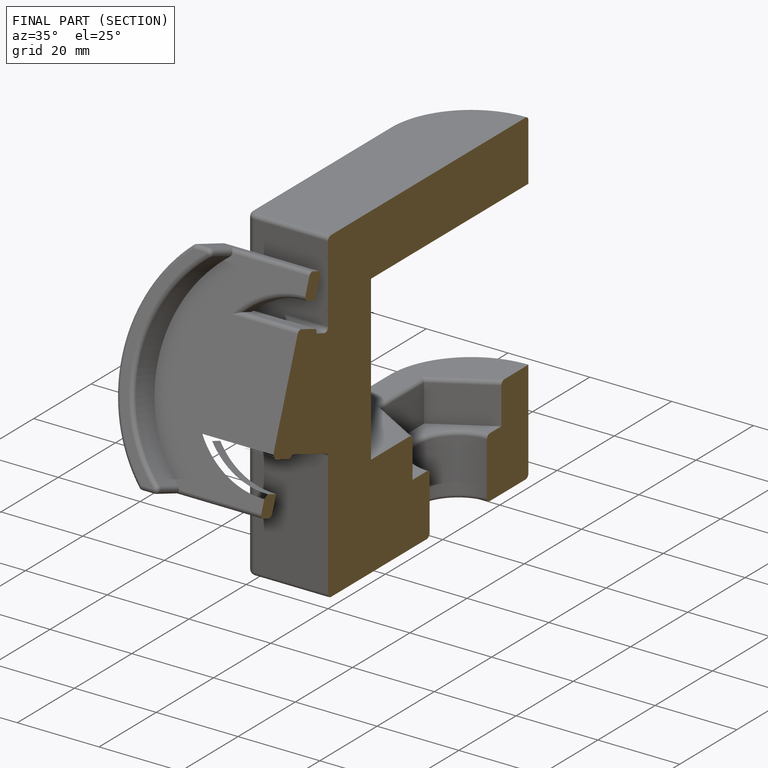
[diagram: finished part — half-section view (interior)]
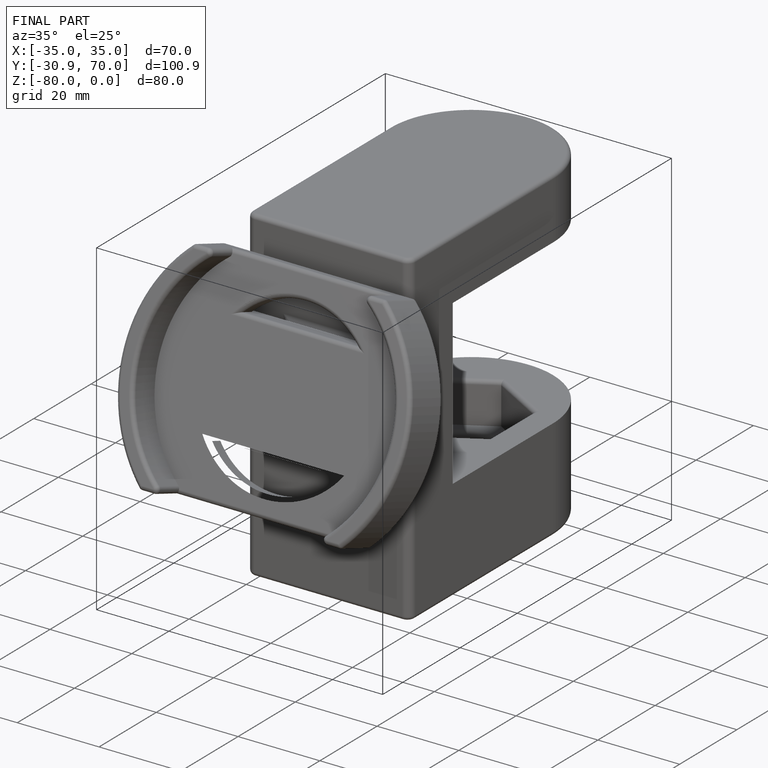
[diagram: finished part — iso view with bounding-box wireframe]
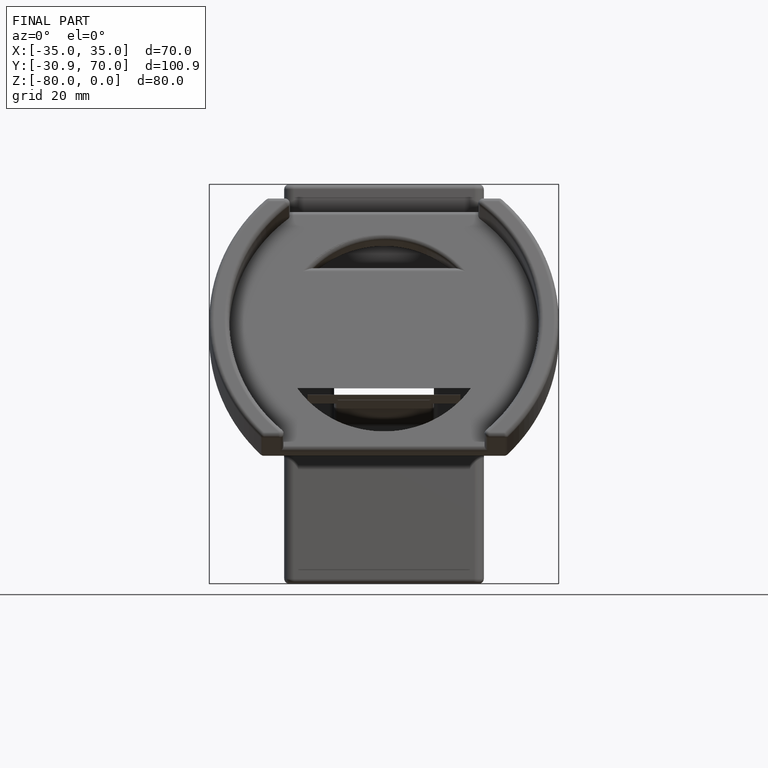
[diagram: finished part — front view with bounding-box wireframe]
